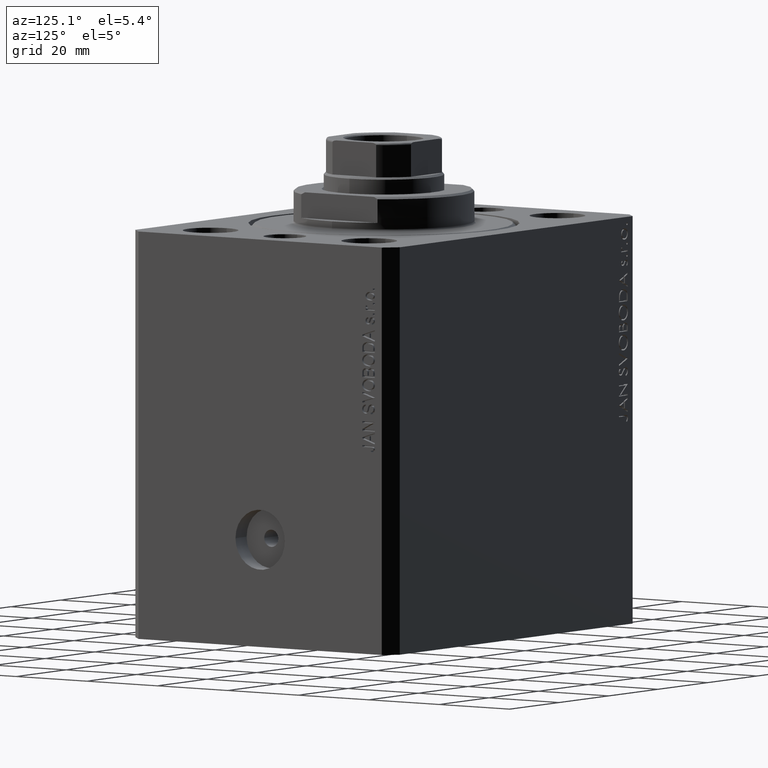
[diagram: clean part render]
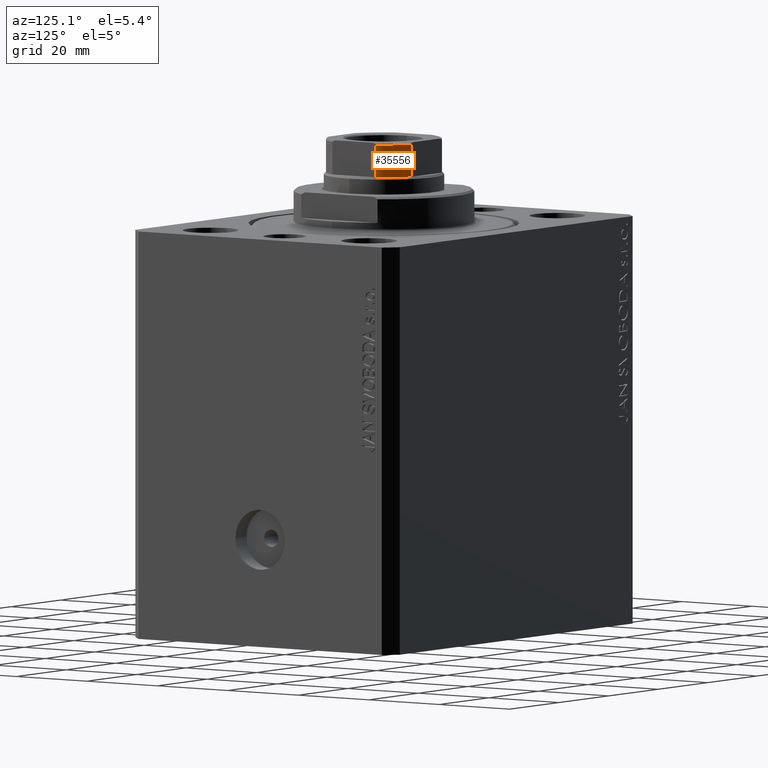
[diagram: same view with one face highlighted and labeled with its STEP entity id]
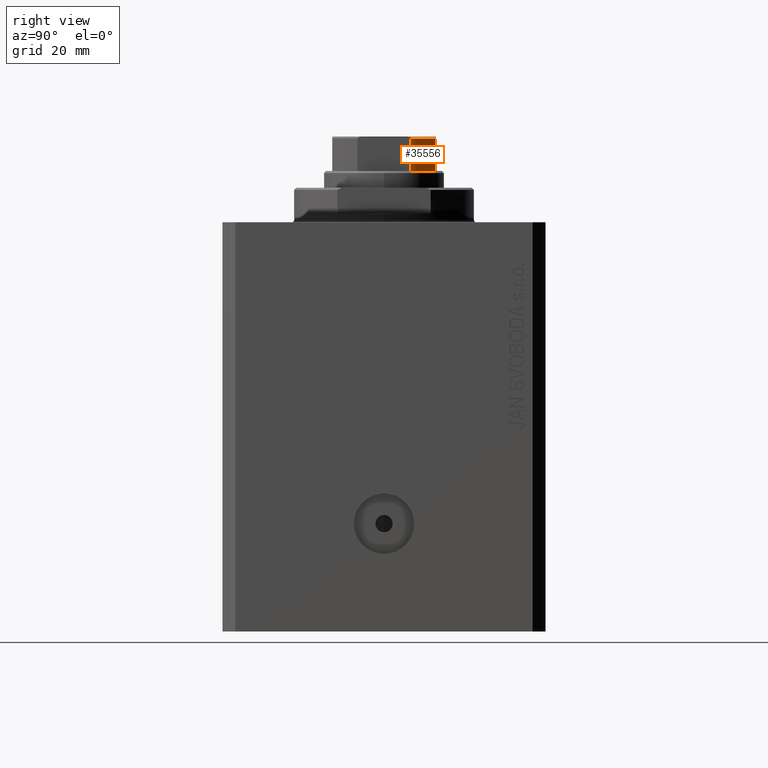
[diagram: same view with one face highlighted and labeled with its STEP entity id]
A machine part, auxiliary view. The second image highlights one B-rep face of the part: STEP entity #35556.
A second angle (right view) of the same face is appended — the face is thin or edge-on in the first view.
In plain terms, the highlighted cylindrical surface (partial cylindrical patch) has radius 13.5 mm, axis along (0, 0, 1).
Its self-contained STEP definition (entity closure, byte-faithful):
#1012 = DIRECTION ( 'NONE',  ( -0.000000000000000000, -0.000000000000000000, 1.000000000000000000 ) ) ;
#3339 = AXIS2_PLACEMENT_3D ( 'NONE', #30653, #20081, #6144 ) ;
#3976 = VERTEX_POINT ( 'NONE', #10723 ) ;
#5158 = EDGE_CURVE ( 'NONE', #16711, #6732, #38436, .T. ) ;
#6144 = DIRECTION ( 'NONE',  ( 1.000000000000000000, -4.440892098500626162E-15, 0.000000000000000000 ) ) ;
#6200 = DIRECTION ( 'NONE',  ( 0.000000000000000000, 0.000000000000000000, 1.000000000000000000 ) ) ;
#6732 = VERTEX_POINT ( 'NONE', #12083 ) ;
#10723 = CARTESIAN_POINT ( 'NONE',  ( 6.184658438426490434, 11.99999999999999822, 102.5000000000000142 ) ) ;
#11585 = CARTESIAN_POINT ( 'NONE',  ( 12.00000000000000000, 6.184658438426490434, -0.001000000000001000089 ) ) ;
#11927 = CIRCLE ( 'NONE', #3339, 13.50000000000000000 ) ;
#12083 = CARTESIAN_POINT ( 'NONE',  ( 6.184658438426492211, 12.00000000000000178, 95.00000000000002842 ) ) ;
#14324 = ORIENTED_EDGE ( 'NONE', *, *, #14796, .F. ) ;
#14796 = EDGE_CURVE ( 'NONE', #16711, #41348, #31829, .T. ) ;
#15110 = DIRECTION ( 'NONE',  ( -0.000000000000000000, -0.000000000000000000, 1.000000000000000000 ) ) ;
#15989 = CYLINDRICAL_SURFACE ( 'NONE', #23458, 13.50000000000000000 ) ;
#16216 = CARTESIAN_POINT ( 'NONE',  ( 12.00000000000000000, 6.184658438426490434, 102.5000000000000142 ) ) ;
#16235 = EDGE_LOOP ( 'NONE', ( #39863, #39014, #14324, #28895 ) ) ;
#16711 = VERTEX_POINT ( 'NONE', #20892 ) ;
#17628 = DIRECTION ( 'NONE',  ( -0.000000000000000000, -0.000000000000000000, 1.000000000000000000 ) ) ;
#20081 = DIRECTION ( 'NONE',  ( 0.000000000000000000, -0.000000000000000000, -1.000000000000000000 ) ) ;
#20892 = CARTESIAN_POINT ( 'NONE',  ( 12.00000000000000000, 6.184658438426490434, 95.00000000000002842 ) ) ;
#23458 = AXIS2_PLACEMENT_3D ( 'NONE', #29701, #15110, #43422 ) ;
#23949 = CARTESIAN_POINT ( 'NONE',  ( 0.000000000000000000, 0.000000000000000000, 95.00000000000000000 ) ) ;
#26935 = VECTOR ( 'NONE', #17628, 1000.000000000000000 ) ;
#27766 = CARTESIAN_POINT ( 'NONE',  ( 6.184658438426490434, 11.99999999999999822, -0.001000000000001000089 ) ) ;
#27982 = LINE ( 'NONE', #27766, #26935 ) ;
#28895 = ORIENTED_EDGE ( 'NONE', *, *, #5158, .T. ) ;
#29701 = CARTESIAN_POINT ( 'NONE',  ( 0.000000000000000000, 0.000000000000000000, -0.001000000000001000089 ) ) ;
#30653 = CARTESIAN_POINT ( 'NONE',  ( 0.000000000000000000, 0.000000000000000000, 102.5000000000000142 ) ) ;
#31829 = LINE ( 'NONE', #11585, #32927 ) ;
#32428 = FACE_OUTER_BOUND ( 'NONE', #16235, .T. ) ;
#32702 = AXIS2_PLACEMENT_3D ( 'NONE', #23949, #6200, #44424 ) ;
#32927 = VECTOR ( 'NONE', #1012, 1000.000000000000000 ) ;
#34298 = EDGE_CURVE ( 'NONE', #3976, #41348, #11927, .T. ) ;
#35556 = ADVANCED_FACE ( 'NONE', ( #32428 ), #15989, .T. ) ;
#38436 = CIRCLE ( 'NONE', #32702, 13.50000000000002665 ) ;
#39014 = ORIENTED_EDGE ( 'NONE', *, *, #34298, .T. ) ;
#39863 = ORIENTED_EDGE ( 'NONE', *, *, #40084, .T. ) ;
#40084 = EDGE_CURVE ( 'NONE', #6732, #3976, #27982, .T. ) ;
#41348 = VERTEX_POINT ( 'NONE', #16216 ) ;
#43422 = DIRECTION ( 'NONE',  ( 1.000000000000000000, 0.000000000000000000, 0.000000000000000000 ) ) ;
#44424 = DIRECTION ( 'NONE',  ( 1.000000000000000000, 0.000000000000000000, 0.000000000000000000 ) ) ;